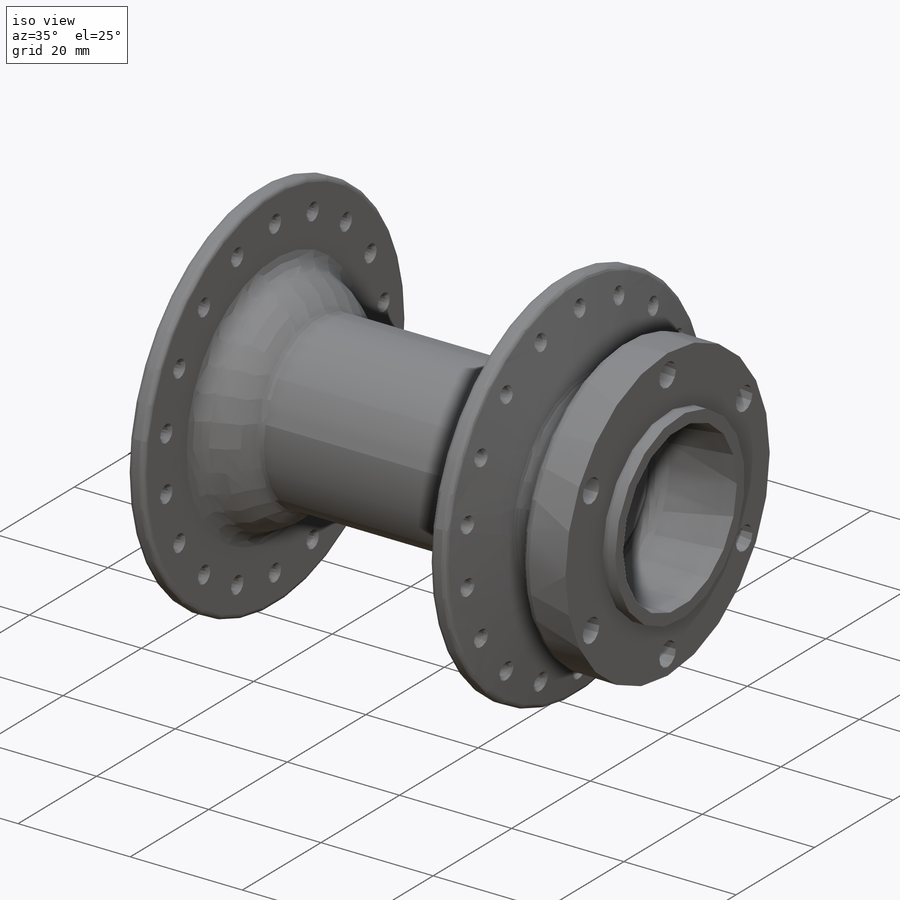
[diagram: iso view]
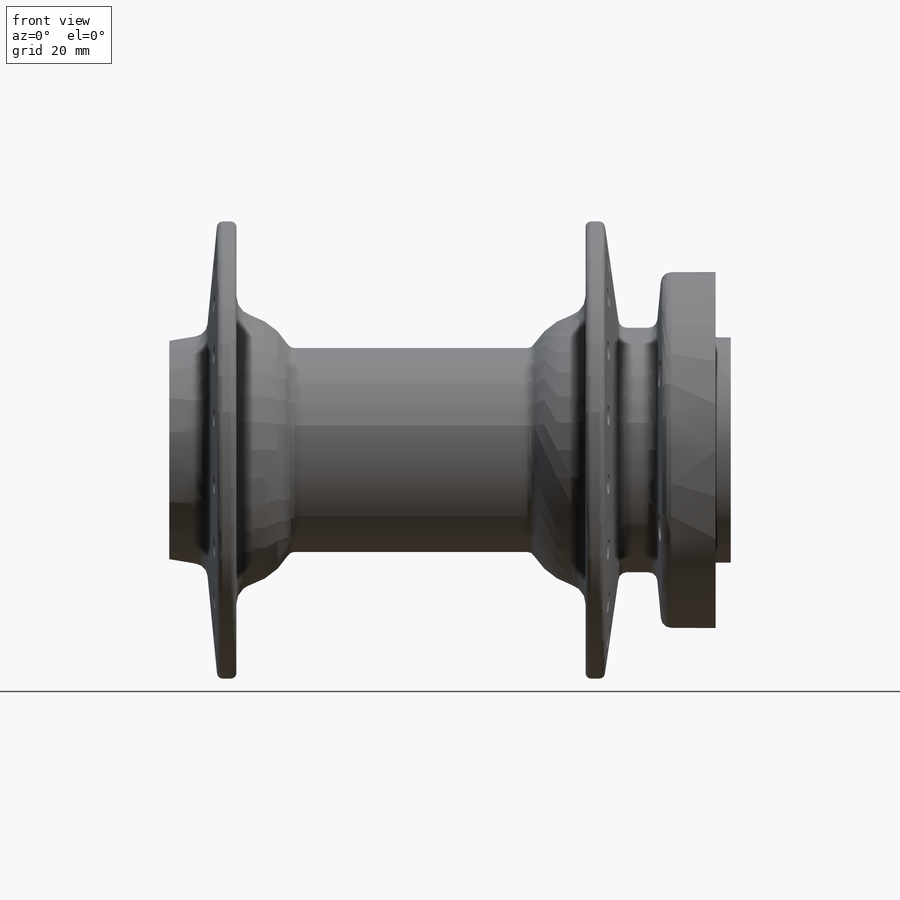
[diagram: front view]
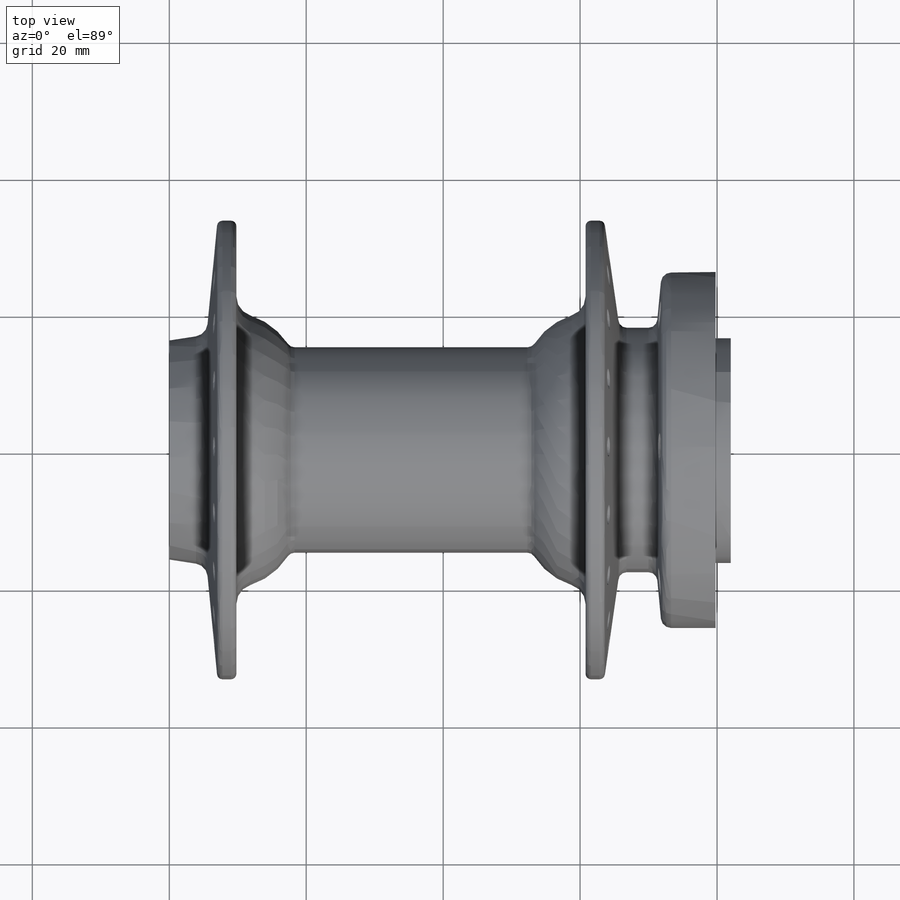
[diagram: top view]
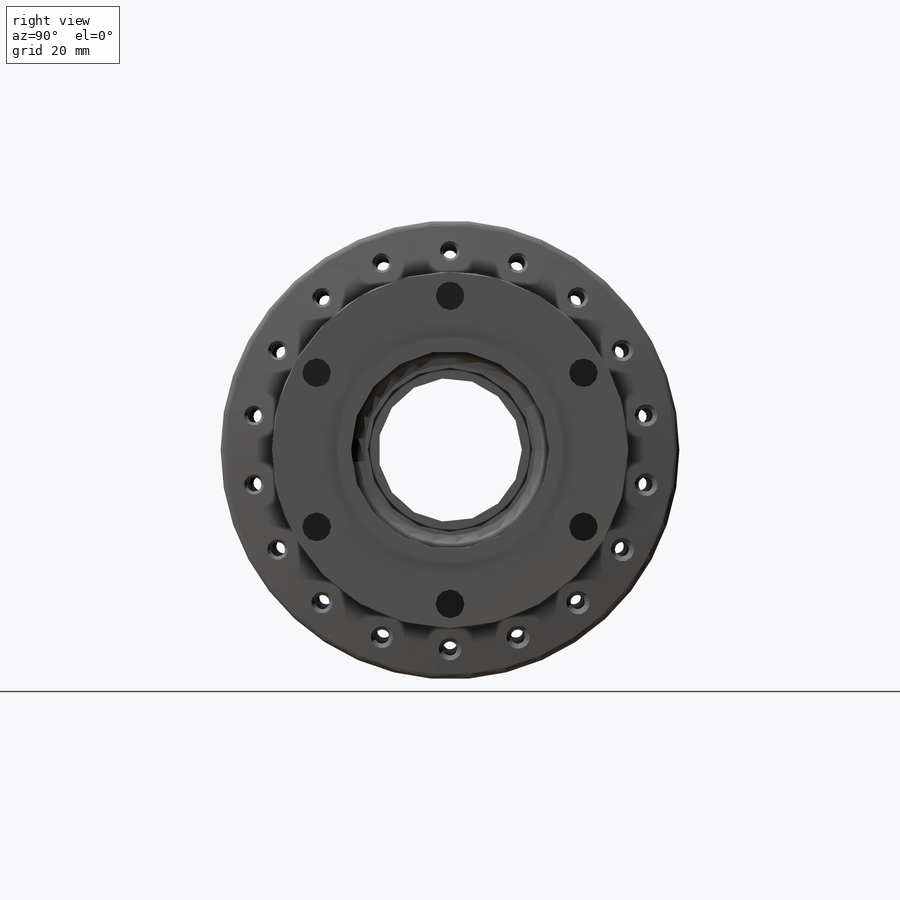
[diagram: right view]
SOLIDWORKS PART (.sldprt)
format: sldprt  version: not decoded by parser v0  size: 1,272,320 bytes
history: native  units: mm
features: sketch x10, cut_extrude x8, chamfer x4, plane x3, pattern_circular x3, fillet x2, material x1, revolve x1, thread x1 (+10 scaffold rows collapsed)
feature tree (43):
  scaffold x10  (default folders/planes/origin — collapsed)
  material  "Материал <не указан>"
  plane  "Спереди"
  plane  "Сверху"
  plane  "Справа"
  sketch  "Эскиз13"  dims[c1.D12=0.8mm c1.D14=2.9mm c1.D4=2.9mm c1.D5=10.0mm c1.D7=1.2mm c1.D9=1.2mm c1.D19=1.3mm c1.D23=1.5mm c1.D29=2.9mm c1.D1=33.5mm c1.D2=16.0mm c1.D3=15.0mm c2.D4=22.5mm c2.D5=6.0mm c2.D6=22.5mm c2.D7=51.0mm c2.D8=34.0mm c2.D9=33.5mm c2.D10=9.8mm c2.D11=26.0mm c2.D13=16.6mm c2.D14=3.9mm c2.D15=25.4mm c3.D4=22.5mm c3.D15=3.9mm c3.D16=~5.586647mm c3.D17=~18.384727mm c3.D18=7.5mm c3.D6=25.5mm c3.D8=34.0mm c4.D18=~28.724573mm c4.D7=~16.651676mm c4.D4=22.5mm c4.D9=~12.138025mm c5.D18=19.0mm c5.D20=60.0mm c5.D21=3.2mm c5.D22=19.0mm c5.D23=~19.501436mm c5.D24=8.0mm c5.D25=16.5mm c5.D26=82.0mm c5.D27=~24.638715mm c5.D6=22.5mm c5.D28=~17.856983mm]
  revolve  "Повернуть3"  Angle=360deg
  sketch  "Эскиз14"  dims[D1=29.0mm]
  cut_extrude  "Вырез-Вытянуть2"  Depth=14mm
  sketch  "Эскиз15"  dims[D1=29.0mm]
  cut_extrude  "Вырез-Вытянуть3"  Depth=14mm
  sketch  "Эскиз17"  dims[D1=21.0mm]
  cut_extrude  "Вырез-Вытянуть4"  Depth=60mm
  sketch  "Эскиз18"  dims[D1=24.0mm]
  cut_extrude  "Вырез-Вытянуть5"  Depth=39mm
  sketch  "Эскиз19"  dims[D1=24.0mm]
  fillet  "Скругление2"  Radius=2mm
  sketch  "Эскиз20"  dims[D1=24.0mm]
  cut_extrude  "Вырез-Вытянуть7"  Depth=10.5mm
  fillet  "Скругление3"  Radius=2mm
  sketch  "Эскиз21"  dims[D1=4.2mm D3=4.2mm D2=22.5mm]
  cut_extrude  "Вырез-Вытянуть8"  [1 undecoded]
  thread  "Условное изображение резьбы1"  Diameter=5mm  [1 undecoded]
  pattern_circular  "Круговой массив1"  Count=6 Angle=360deg
  sketch  "Эскиз22"  dims[D1=2.1mm D2=29.0mm]
  cut_extrude  "Вырез-Вытянуть9"  Depth=6mm
  chamfer  "Фаска1"  Distance=0.5mm Angle=45deg
  chamfer  "Фаска2"  Distance=0.5mm Angle=45deg
  pattern_circular  "Круговой массив5"  Count=18 Angle=360deg
  sketch  "Эскиз28"  dims[D1=2.1mm]
  cut_extrude  "Вырез-Вытянуть10"  Depth=6mm
  chamfer  "Фаска3"  Distance=0.5mm Angle=45deg
  chamfer  "Фаска4"  Distance=0.5mm Angle=45deg
  pattern_circular  "Круговой массив6"  Count=18 Angle=360deg
decode coverage: 28 of 29 modeling features carry decoded parameters
note: ~ marks probable driven/reference dimensions
note: 2 parameter values undecoded
note: suppression state not decoded; provenance and decode notes live in map.json
